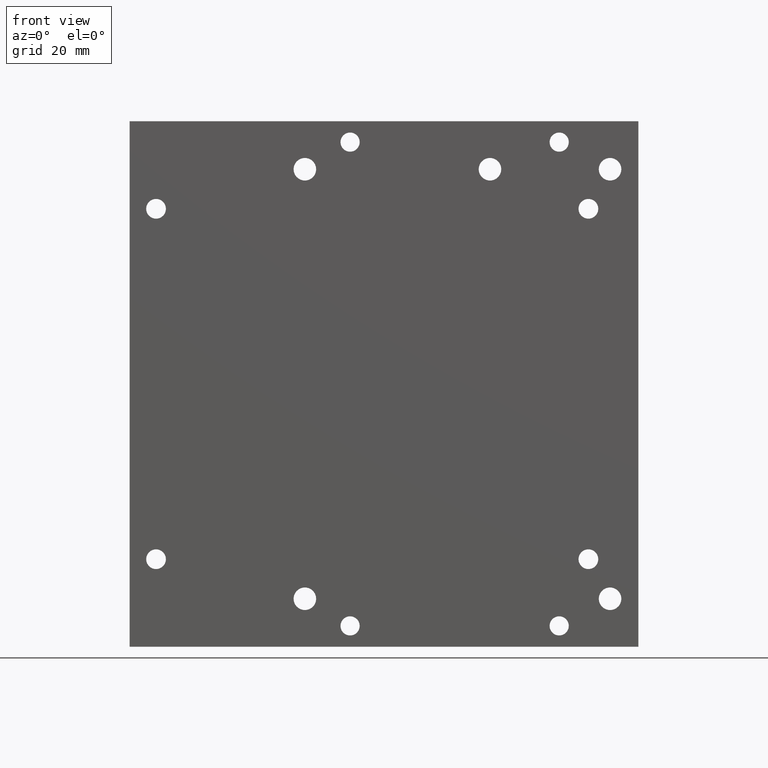
[diagram: clean part render]
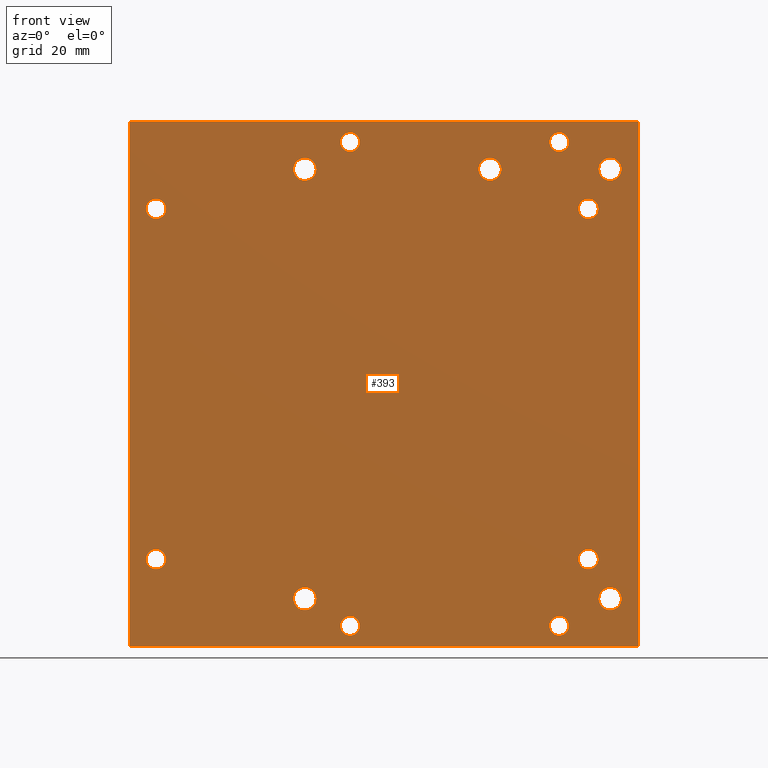
[diagram: same view with one face highlighted and labeled with its STEP entity id]
A machine part, front view. The second image highlights one B-rep face of the part: STEP entity #393.
In plain terms, the highlighted planar face has unit normal (0, -1, 0).
Its self-contained STEP definition (entity closure, byte-faithful):
#15=FACE_BOUND('',#73,.T.);
#16=FACE_BOUND('',#74,.T.);
#17=FACE_BOUND('',#75,.T.);
#18=FACE_BOUND('',#76,.T.);
#19=FACE_BOUND('',#77,.T.);
#20=FACE_BOUND('',#78,.T.);
#21=FACE_BOUND('',#79,.T.);
#22=FACE_BOUND('',#80,.T.);
#23=FACE_BOUND('',#81,.T.);
#24=FACE_BOUND('',#82,.T.);
#25=FACE_BOUND('',#83,.T.);
#26=FACE_BOUND('',#84,.T.);
#27=FACE_BOUND('',#85,.T.);
#43=PLANE('',#440);
#53=FACE_OUTER_BOUND('',#72,.T.);
#72=EDGE_LOOP('',(#296,#297,#298,#299));
#73=EDGE_LOOP('',(#300));
#74=EDGE_LOOP('',(#301));
#75=EDGE_LOOP('',(#302));
#76=EDGE_LOOP('',(#303));
#77=EDGE_LOOP('',(#304));
#78=EDGE_LOOP('',(#305));
#79=EDGE_LOOP('',(#306));
#80=EDGE_LOOP('',(#307));
#81=EDGE_LOOP('',(#308));
#82=EDGE_LOOP('',(#309));
#83=EDGE_LOOP('',(#310));
#84=EDGE_LOOP('',(#311));
#85=EDGE_LOOP('',(#312));
#117=LINE('',#620,#142);
#119=LINE('',#624,#144);
#122=LINE('',#630,#147);
#123=LINE('',#631,#148);
#142=VECTOR('',#505,10.);
#144=VECTOR('',#509,10.);
#147=VECTOR('',#514,10.);
#148=VECTOR('',#515,10.);
#162=CIRCLE('',#428,1.7);
#164=CIRCLE('',#431,1.7);
#166=CIRCLE('',#434,1.7);
#168=CIRCLE('',#437,1.7);
#169=CIRCLE('',#441,2.);
#170=CIRCLE('',#442,2.);
#171=CIRCLE('',#443,1.75);
#172=CIRCLE('',#444,1.75);
#173=CIRCLE('',#445,1.75);
#174=CIRCLE('',#446,1.75);
#175=CIRCLE('',#447,2.);
#176=CIRCLE('',#448,2.);
#177=CIRCLE('',#449,2.);
#188=VERTEX_POINT('',#592);
#190=VERTEX_POINT('',#598);
#192=VERTEX_POINT('',#604);
#194=VERTEX_POINT('',#610);
#197=VERTEX_POINT('',#617);
#198=VERTEX_POINT('',#619);
#199=VERTEX_POINT('',#623);
#201=VERTEX_POINT('',#629);
#202=VERTEX_POINT('',#632);
#203=VERTEX_POINT('',#634);
#204=VERTEX_POINT('',#636);
#205=VERTEX_POINT('',#638);
#206=VERTEX_POINT('',#640);
#207=VERTEX_POINT('',#642);
#208=VERTEX_POINT('',#644);
#209=VERTEX_POINT('',#646);
#210=VERTEX_POINT('',#648);
#223=EDGE_CURVE('',#188,#188,#162,.T.);
#226=EDGE_CURVE('',#190,#190,#164,.T.);
#229=EDGE_CURVE('',#192,#192,#166,.T.);
#232=EDGE_CURVE('',#194,#194,#168,.T.);
#235=EDGE_CURVE('',#198,#197,#117,.T.);
#237=EDGE_CURVE('',#198,#199,#119,.T.);
#240=EDGE_CURVE('',#201,#197,#122,.T.);
#241=EDGE_CURVE('',#199,#201,#123,.T.);
#242=EDGE_CURVE('',#202,#202,#169,.T.);
#243=EDGE_CURVE('',#203,#203,#170,.T.);
#244=EDGE_CURVE('',#204,#204,#171,.T.);
#245=EDGE_CURVE('',#205,#205,#172,.T.);
#246=EDGE_CURVE('',#206,#206,#173,.T.);
#247=EDGE_CURVE('',#207,#207,#174,.T.);
#248=EDGE_CURVE('',#208,#208,#175,.T.);
#249=EDGE_CURVE('',#209,#209,#176,.T.);
#250=EDGE_CURVE('',#210,#210,#177,.T.);
#296=ORIENTED_EDGE('',*,*,#235,.T.);
#297=ORIENTED_EDGE('',*,*,#240,.F.);
#298=ORIENTED_EDGE('',*,*,#241,.F.);
#299=ORIENTED_EDGE('',*,*,#237,.F.);
#300=ORIENTED_EDGE('',*,*,#223,.T.);
#301=ORIENTED_EDGE('',*,*,#226,.T.);
#302=ORIENTED_EDGE('',*,*,#229,.T.);
#303=ORIENTED_EDGE('',*,*,#232,.T.);
#304=ORIENTED_EDGE('',*,*,#242,.T.);
#305=ORIENTED_EDGE('',*,*,#243,.T.);
#306=ORIENTED_EDGE('',*,*,#244,.T.);
#307=ORIENTED_EDGE('',*,*,#245,.T.);
#308=ORIENTED_EDGE('',*,*,#246,.T.);
#309=ORIENTED_EDGE('',*,*,#247,.T.);
#310=ORIENTED_EDGE('',*,*,#248,.T.);
#311=ORIENTED_EDGE('',*,*,#249,.T.);
#312=ORIENTED_EDGE('',*,*,#250,.T.);
#393=ADVANCED_FACE('',(#53,#15,#16,#17,#18,#19,#20,#21,#22,#23,#24,#25,
#26,#27),#43,.T.);
#428=AXIS2_PLACEMENT_3D('',#594,#478,#479);
#431=AXIS2_PLACEMENT_3D('',#600,#485,#486);
#434=AXIS2_PLACEMENT_3D('',#606,#492,#493);
#437=AXIS2_PLACEMENT_3D('',#612,#499,#500);
#440=AXIS2_PLACEMENT_3D('',#628,#512,#513);
#441=AXIS2_PLACEMENT_3D('',#633,#516,#517);
#442=AXIS2_PLACEMENT_3D('',#635,#518,#519);
#443=AXIS2_PLACEMENT_3D('',#637,#520,#521);
#444=AXIS2_PLACEMENT_3D('',#639,#522,#523);
#445=AXIS2_PLACEMENT_3D('',#641,#524,#525);
#446=AXIS2_PLACEMENT_3D('',#643,#526,#527);
#447=AXIS2_PLACEMENT_3D('',#645,#528,#529);
#448=AXIS2_PLACEMENT_3D('',#647,#530,#531);
#449=AXIS2_PLACEMENT_3D('',#649,#532,#533);
#478=DIRECTION('center_axis',(0.,1.,0.));
#479=DIRECTION('ref_axis',(-1.,0.,0.));
#485=DIRECTION('center_axis',(0.,1.,0.));
#486=DIRECTION('ref_axis',(-1.,0.,0.));
#492=DIRECTION('center_axis',(0.,1.,0.));
#493=DIRECTION('ref_axis',(-1.,0.,0.));
#499=DIRECTION('center_axis',(0.,1.,0.));
#500=DIRECTION('ref_axis',(-1.,0.,0.));
#505=DIRECTION('',(0.,0.,-1.));
#509=DIRECTION('',(1.,0.,0.));
#512=DIRECTION('center_axis',(0.,-1.,0.));
#513=DIRECTION('ref_axis',(0.,0.,-1.));
#514=DIRECTION('',(-1.,0.,-1.77635683940025E-16));
#515=DIRECTION('',(9.2807165320119E-32,0.,-1.));
#516=DIRECTION('center_axis',(0.,1.,0.));
#517=DIRECTION('ref_axis',(1.,0.,0.));
#518=DIRECTION('center_axis',(0.,1.,0.));
#519=DIRECTION('ref_axis',(1.,0.,0.));
#520=DIRECTION('center_axis',(0.,1.,0.));
#521=DIRECTION('ref_axis',(1.,0.,0.));
#522=DIRECTION('center_axis',(0.,1.,0.));
#523=DIRECTION('ref_axis',(1.,0.,0.));
#524=DIRECTION('center_axis',(0.,1.,0.));
#525=DIRECTION('ref_axis',(1.,0.,0.));
#526=DIRECTION('center_axis',(0.,1.,0.));
#527=DIRECTION('ref_axis',(1.,0.,0.));
#528=DIRECTION('center_axis',(0.,1.,0.));
#529=DIRECTION('ref_axis',(1.,0.,0.));
#530=DIRECTION('center_axis',(0.,1.,0.));
#531=DIRECTION('ref_axis',(1.,0.,0.));
#532=DIRECTION('center_axis',(0.,1.,0.));
#533=DIRECTION('ref_axis',(1.,0.,0.));
#592=CARTESIAN_POINT('',(-12.3,0.,0.300000000000011));
#594=CARTESIAN_POINT('Origin',(-14.,0.,0.300000000000011));
#598=CARTESIAN_POINT('',(-12.3,0.,-85.3));
#600=CARTESIAN_POINT('Origin',(-14.,0.,-85.3));
#604=CARTESIAN_POINT('',(-49.3,0.,-85.3));
#606=CARTESIAN_POINT('Origin',(-51.,0.,-85.3));
#610=CARTESIAN_POINT('',(-49.3,0.,0.300000000000047));
#612=CARTESIAN_POINT('Origin',(-51.,0.,0.300000000000047));
#617=CARTESIAN_POINT('',(-90.,0.,-89.));
#619=CARTESIAN_POINT('',(-90.,0.,4.));
#620=CARTESIAN_POINT('',(-90.,0.,-65.75));
#623=CARTESIAN_POINT('',(0.,0.,4.));
#624=CARTESIAN_POINT('',(-100.,0.,4.));
#628=CARTESIAN_POINT('Origin',(-50.,0.,-42.5));
#629=CARTESIAN_POINT('',(7.88860905221012E-30,0.,-89.));
#630=CARTESIAN_POINT('',(7.88860905221012E-30,0.,-89.));
#631=CARTESIAN_POINT('',(0.,0.,0.));
#632=CARTESIAN_POINT('',(-7.,0.,-80.5));
#633=CARTESIAN_POINT('Origin',(-5.,0.,-80.5));
#634=CARTESIAN_POINT('',(-7.,0.,-4.49999999999999));
#635=CARTESIAN_POINT('Origin',(-5.,0.,-4.49999999999999));
#636=CARTESIAN_POINT('',(-10.5845135949853,0.,-73.5));
#637=CARTESIAN_POINT('Origin',(-8.83451359498527,0.,-73.5));
#638=CARTESIAN_POINT('',(-10.5845135949853,0.,-11.5));
#639=CARTESIAN_POINT('Origin',(-8.83451359498527,0.,-11.5));
#640=CARTESIAN_POINT('',(-87.0845135949853,0.,-73.5));
#641=CARTESIAN_POINT('Origin',(-85.3345135949853,0.,-73.5));
#642=CARTESIAN_POINT('',(-87.0845135949853,0.,-11.5));
#643=CARTESIAN_POINT('Origin',(-85.3345135949853,0.,-11.5));
#644=CARTESIAN_POINT('',(-28.25,0.,-4.49999999999999));
#645=CARTESIAN_POINT('Origin',(-26.25,0.,-4.49999999999999));
#646=CARTESIAN_POINT('',(-61.,0.,-80.5));
#647=CARTESIAN_POINT('Origin',(-59.,0.,-80.5));
#648=CARTESIAN_POINT('',(-61.,0.,-4.49999999999999));
#649=CARTESIAN_POINT('Origin',(-59.,0.,-4.49999999999999));